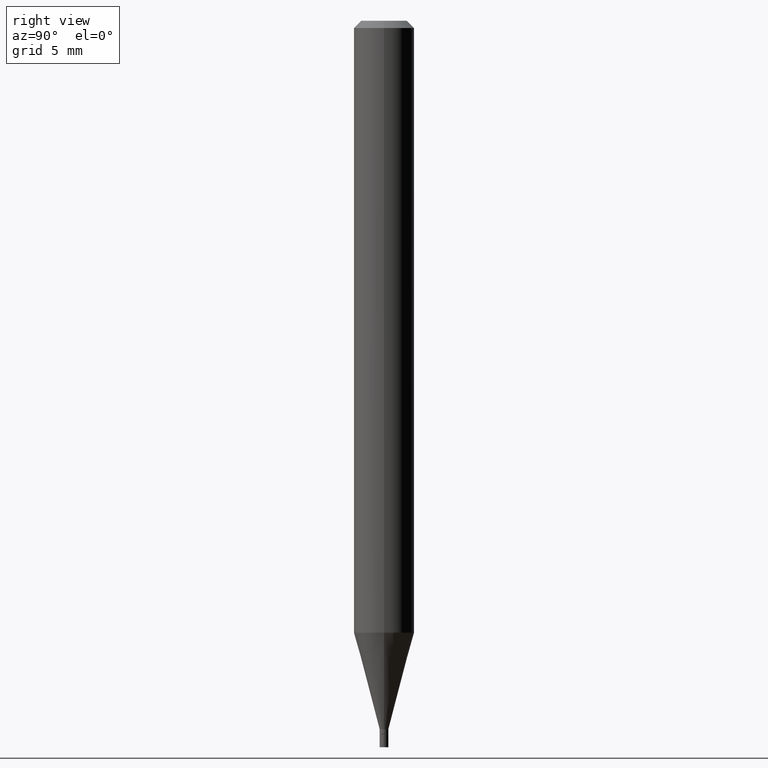
[diagram: clean part render]
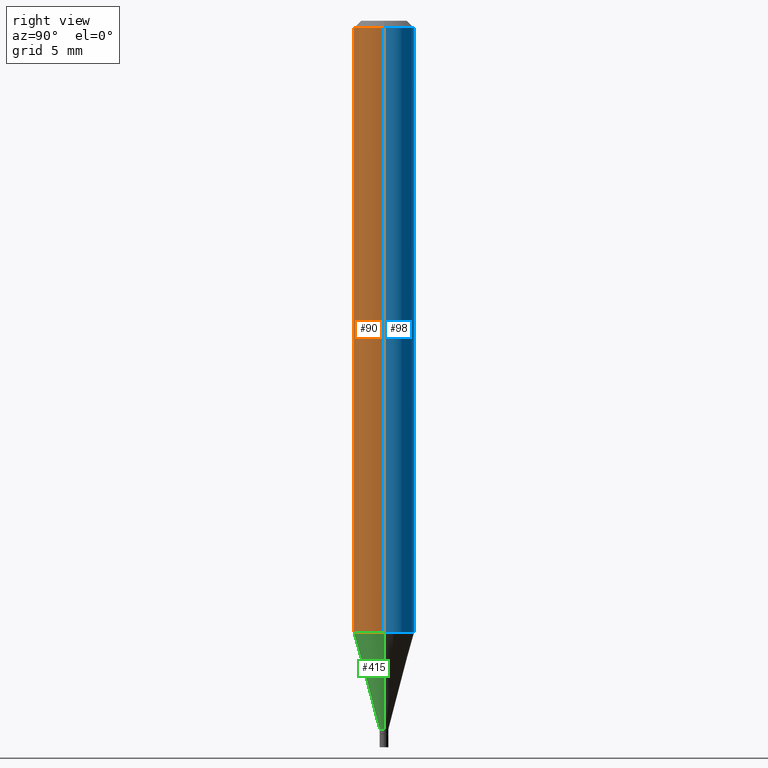
[diagram: same view with three faces highlighted in distinct colors, each labeled with its STEP entity id]
A machine part, right view with three faces highlighted in distinct colors.
Their STEP definitions:

[orange] entity #90 — the highlighted cylindrical surface (edge-blend (fillet) strip) has radius 1.5875 mm, axis along (-0, 0, 1).
#12 = ORIENTED_EDGE ( 'NONE', *, *, #249, .F. ) ;
#36 = VERTEX_POINT ( 'NONE', #406 ) ;
#43 = CARTESIAN_POINT ( 'NONE',  ( 0.06250000000000000000, -4.847346728445009971E-15, -1.263335281795065601 ) ) ;
#61 = CYLINDRICAL_SURFACE ( 'NONE', #297, 0.06250000000000000000 ) ;
#66 = ORIENTED_EDGE ( 'NONE', *, *, #292, .T. ) ;
#90 = ADVANCED_FACE ( 'NONE', ( #137 ), #61, .T. ) ;
#118 = DIRECTION ( 'NONE',  ( 1.000000000000000000, -6.982962677686266711E-15, 4.876176775795935793E-29 ) ) ;
#120 = DIRECTION ( 'NONE',  ( -2.445468806185136877E-29, 3.491481338843145188E-15, 1.000000000000000000 ) ) ;
#126 = CARTESIAN_POINT ( 'NONE',  ( 3.089447023382941681E-29, -4.410911561089617513E-15, -1.263335281795065601 ) ) ;
#127 = DIRECTION ( 'NONE',  ( 1.000000000000000000, -6.982962677686262766E-15, 0.000000000000000000 ) ) ;
#137 = FACE_OUTER_BOUND ( 'NONE', #199, .T. ) ;
#147 = CIRCLE ( 'NONE', #269, 0.06250000000000000000 ) ;
#149 = DIRECTION ( 'NONE',  ( -2.445468806185136597E-29, 3.491481338843145583E-15, 1.000000000000000000 ) ) ;
#152 = ORIENTED_EDGE ( 'NONE', *, *, #187, .T. ) ;
#160 = VECTOR ( 'NONE', #329, 39.37007874015748143 ) ;
#187 = EDGE_CURVE ( 'NONE', #255, #36, #399, .T. ) ;
#188 = CARTESIAN_POINT ( 'NONE',  ( 3.668203209277705088E-31, -5.237222008264718399E-17, -0.01499999999999999944 ) ) ;
#192 = DIRECTION ( 'NONE',  ( -2.445468806185136597E-29, 3.491481338843145583E-15, 1.000000000000000000 ) ) ;
#199 = EDGE_LOOP ( 'NONE', ( #213, #66, #152, #12 ) ) ;
#210 = VERTEX_POINT ( 'NONE', #332 ) ;
#213 = ORIENTED_EDGE ( 'NONE', *, *, #285, .F. ) ;
#220 = AXIS2_PLACEMENT_3D ( 'NONE', #126, #192, #127 ) ;
#249 = EDGE_CURVE ( 'NONE', #265, #36, #147, .T. ) ;
#255 = VERTEX_POINT ( 'NONE', #43 ) ;
#260 = CARTESIAN_POINT ( 'NONE',  ( 0.06250000000000000000, -4.364351673553916694E-16, 3.047610484872459871E-30 ) ) ;
#265 = VERTEX_POINT ( 'NONE', #368 ) ;
#269 = AXIS2_PLACEMENT_3D ( 'NONE', #188, #149, #459 ) ;
#285 = EDGE_CURVE ( 'NONE', #210, #265, #466, .T. ) ;
#289 = DIRECTION ( 'NONE',  ( -2.445468806185136597E-29, 3.491481338843145583E-15, 1.000000000000000000 ) ) ;
#291 = CARTESIAN_POINT ( 'NONE',  ( -0.06250000000000000000, 4.440892098500626162E-16, -3.074334431409316114E-30 ) ) ;
#292 = EDGE_CURVE ( 'NONE', #210, #255, #414, .T. ) ;
#297 = AXIS2_PLACEMENT_3D ( 'NONE', #426, #289, #118 ) ;
#310 = VECTOR ( 'NONE', #120, 39.37007874015748143 ) ;
#329 = DIRECTION ( 'NONE',  ( -2.445468806185136877E-29, 3.491481338843145188E-15, 1.000000000000000000 ) ) ;
#332 = CARTESIAN_POINT ( 'NONE',  ( -0.06250000000000000000, -3.966822351239554897E-15, -1.263335281795065601 ) ) ;
#368 = CARTESIAN_POINT ( 'NONE',  ( -0.06250000000000000000, -1.787552680736069877E-15, -0.01499999999999999944 ) ) ;
#399 = LINE ( 'NONE', #260, #310 ) ;
#406 = CARTESIAN_POINT ( 'NONE',  ( 0.06250000000000000000, -4.888073874380388472E-16, -0.01499999999999999944 ) ) ;
#414 = CIRCLE ( 'NONE', #220, 0.06250000000000000000 ) ;
#426 = CARTESIAN_POINT ( 'NONE',  ( 0.000000000000000000, 0.000000000000000000, 0.000000000000000000 ) ) ;
#459 = DIRECTION ( 'NONE',  ( 1.000000000000000000, -6.982962677686266711E-15, 0.000000000000000000 ) ) ;
#466 = LINE ( 'NONE', #291, #160 ) ;

[blue] entity #98 — the highlighted cylindrical surface (edge-blend (fillet) strip) has radius 1.5875 mm, axis along (-0, 0, 1).
#19 = ORIENTED_EDGE ( 'NONE', *, *, #187, .F. ) ;
#33 = ORIENTED_EDGE ( 'NONE', *, *, #93, .T. ) ;
#36 = VERTEX_POINT ( 'NONE', #406 ) ;
#43 = CARTESIAN_POINT ( 'NONE',  ( 0.06250000000000000000, -4.847346728445009971E-15, -1.263335281795065601 ) ) ;
#49 = DIRECTION ( 'NONE',  ( 1.000000000000000000, -6.982962677686266711E-15, 0.000000000000000000 ) ) ;
#65 = AXIS2_PLACEMENT_3D ( 'NONE', #317, #169, #314 ) ;
#81 = AXIS2_PLACEMENT_3D ( 'NONE', #422, #392, #215 ) ;
#93 = EDGE_CURVE ( 'NONE', #255, #210, #129, .T. ) ;
#98 = ADVANCED_FACE ( 'NONE', ( #385 ), #208, .T. ) ;
#120 = DIRECTION ( 'NONE',  ( -2.445468806185136877E-29, 3.491481338843145188E-15, 1.000000000000000000 ) ) ;
#129 = CIRCLE ( 'NONE', #65, 0.06250000000000000000 ) ;
#160 = VECTOR ( 'NONE', #329, 39.37007874015748143 ) ;
#169 = DIRECTION ( 'NONE',  ( -2.445468806185136597E-29, 3.491481338843145583E-15, 1.000000000000000000 ) ) ;
#187 = EDGE_CURVE ( 'NONE', #255, #36, #399, .T. ) ;
#208 = CYLINDRICAL_SURFACE ( 'NONE', #81, 0.06250000000000000000 ) ;
#210 = VERTEX_POINT ( 'NONE', #332 ) ;
#215 = DIRECTION ( 'NONE',  ( 1.000000000000000000, -6.982962677686266711E-15, 4.876176775795935793E-29 ) ) ;
#246 = CIRCLE ( 'NONE', #303, 0.06250000000000000000 ) ;
#255 = VERTEX_POINT ( 'NONE', #43 ) ;
#260 = CARTESIAN_POINT ( 'NONE',  ( 0.06250000000000000000, -4.364351673553916694E-16, 3.047610484872459871E-30 ) ) ;
#265 = VERTEX_POINT ( 'NONE', #368 ) ;
#268 = EDGE_CURVE ( 'NONE', #36, #265, #246, .T. ) ;
#285 = EDGE_CURVE ( 'NONE', #210, #265, #466, .T. ) ;
#290 = DIRECTION ( 'NONE',  ( -2.445468806185136597E-29, 3.491481338843145583E-15, 1.000000000000000000 ) ) ;
#291 = CARTESIAN_POINT ( 'NONE',  ( -0.06250000000000000000, 4.440892098500626162E-16, -3.074334431409316114E-30 ) ) ;
#303 = AXIS2_PLACEMENT_3D ( 'NONE', #366, #290, #49 ) ;
#310 = VECTOR ( 'NONE', #120, 39.37007874015748143 ) ;
#314 = DIRECTION ( 'NONE',  ( 1.000000000000000000, -6.982962677686262766E-15, 0.000000000000000000 ) ) ;
#317 = CARTESIAN_POINT ( 'NONE',  ( 3.089447023382941681E-29, -4.410911561089617513E-15, -1.263335281795065601 ) ) ;
#329 = DIRECTION ( 'NONE',  ( -2.445468806185136877E-29, 3.491481338843145188E-15, 1.000000000000000000 ) ) ;
#332 = CARTESIAN_POINT ( 'NONE',  ( -0.06250000000000000000, -3.966822351239554897E-15, -1.263335281795065601 ) ) ;
#353 = ORIENTED_EDGE ( 'NONE', *, *, #285, .T. ) ;
#365 = EDGE_LOOP ( 'NONE', ( #33, #353, #421, #19 ) ) ;
#366 = CARTESIAN_POINT ( 'NONE',  ( 3.668203209277705088E-31, -5.237222008264718399E-17, -0.01499999999999999944 ) ) ;
#368 = CARTESIAN_POINT ( 'NONE',  ( -0.06250000000000000000, -1.787552680736069877E-15, -0.01499999999999999944 ) ) ;
#385 = FACE_OUTER_BOUND ( 'NONE', #365, .T. ) ;
#392 = DIRECTION ( 'NONE',  ( -2.445468806185136597E-29, 3.491481338843145583E-15, 1.000000000000000000 ) ) ;
#399 = LINE ( 'NONE', #260, #310 ) ;
#406 = CARTESIAN_POINT ( 'NONE',  ( 0.06250000000000000000, -4.888073874380388472E-16, -0.01499999999999999944 ) ) ;
#421 = ORIENTED_EDGE ( 'NONE', *, *, #268, .F. ) ;
#422 = CARTESIAN_POINT ( 'NONE',  ( 0.000000000000000000, 0.000000000000000000, 0.000000000000000000 ) ) ;
#466 = LINE ( 'NONE', #291, #160 ) ;

[green] entity #415 — the highlighted conical surface has half-angle 15 deg.
#2 = DIRECTION ( 'NONE',  ( -2.445468806185136597E-29, 3.491481338843145583E-15, 1.000000000000000000 ) ) ;
#43 = CARTESIAN_POINT ( 'NONE',  ( 0.06250000000000000000, -4.847346728445009971E-15, -1.263335281795065601 ) ) ;
#56 = CIRCLE ( 'NONE', #97, 0.008999999999999919523 ) ;
#62 = DIRECTION ( 'NONE',  ( 0.2588190451025214611, 1.565188264969621573E-15, 0.9659258262890682012 ) ) ;
#92 = DIRECTION ( 'NONE',  ( 1.000000000000000000, -6.982962677686288010E-15, 0.000000000000000000 ) ) ;
#94 = LINE ( 'NONE', #234, #99 ) ;
#97 = AXIS2_PLACEMENT_3D ( 'NONE', #390, #2, #111 ) ;
#99 = VECTOR ( 'NONE', #62, 39.37007874015747433 ) ;
#107 = VECTOR ( 'NONE', #326, 39.37007874015747433 ) ;
#111 = DIRECTION ( 'NONE',  ( 1.000000000000000000, -6.982962677686288010E-15, 0.000000000000000000 ) ) ;
#116 = LINE ( 'NONE', #181, #107 ) ;
#121 = ORIENTED_EDGE ( 'NONE', *, *, #292, .F. ) ;
#126 = CARTESIAN_POINT ( 'NONE',  ( 3.089447023382941681E-29, -4.410911561089617513E-15, -1.263335281795065601 ) ) ;
#127 = DIRECTION ( 'NONE',  ( 1.000000000000000000, -6.982962677686262766E-15, 0.000000000000000000 ) ) ;
#128 = EDGE_CURVE ( 'NONE', #198, #202, #56, .T. ) ;
#154 = ORIENTED_EDGE ( 'NONE', *, *, #284, .F. ) ;
#161 = FACE_OUTER_BOUND ( 'NONE', #431, .T. ) ;
#166 = AXIS2_PLACEMENT_3D ( 'NONE', #444, #301, #92 ) ;
#181 = CARTESIAN_POINT ( 'NONE',  ( -0.008999999999999919523, -5.044088352509113895E-15, -1.463000000000000300 ) ) ;
#192 = DIRECTION ( 'NONE',  ( -2.445468806185136597E-29, 3.491481338843145583E-15, 1.000000000000000000 ) ) ;
#198 = VERTEX_POINT ( 'NONE', #398 ) ;
#202 = VERTEX_POINT ( 'NONE', #360 ) ;
#210 = VERTEX_POINT ( 'NONE', #332 ) ;
#220 = AXIS2_PLACEMENT_3D ( 'NONE', #126, #192, #127 ) ;
#234 = CARTESIAN_POINT ( 'NONE',  ( 0.008999999999999919523, -5.170883862826698675E-15, -1.463000000000000300 ) ) ;
#255 = VERTEX_POINT ( 'NONE', #43 ) ;
#284 = EDGE_CURVE ( 'NONE', #198, #210, #116, .T. ) ;
#292 = EDGE_CURVE ( 'NONE', #210, #255, #414, .T. ) ;
#301 = DIRECTION ( 'NONE',  ( -2.445468806185136597E-29, 3.491481338843145583E-15, 1.000000000000000000 ) ) ;
#326 = DIRECTION ( 'NONE',  ( -0.2588190451025214611, 5.211531920934551042E-15, 0.9659258262890682012 ) ) ;
#332 = CARTESIAN_POINT ( 'NONE',  ( -0.06250000000000000000, -3.966822351239554897E-15, -1.263335281795065601 ) ) ;
#352 = CONICAL_SURFACE ( 'NONE', #166, 0.008999999999999919523, 0.2617993877991501295 ) ;
#360 = CARTESIAN_POINT ( 'NONE',  ( 0.008999999999999919523, -5.170883862826698675E-15, -1.463000000000000300 ) ) ;
#361 = ORIENTED_EDGE ( 'NONE', *, *, #128, .T. ) ;
#367 = ORIENTED_EDGE ( 'NONE', *, *, #452, .T. ) ;
#390 = CARTESIAN_POINT ( 'NONE',  ( 3.577720863448855523E-29, -5.108037198727522968E-15, -1.463000000000000300 ) ) ;
#398 = CARTESIAN_POINT ( 'NONE',  ( -0.008999999999999919523, -4.505455351874334790E-15, -1.463000000000000300 ) ) ;
#414 = CIRCLE ( 'NONE', #220, 0.06250000000000000000 ) ;
#415 = ADVANCED_FACE ( 'NONE', ( #161 ), #352, .T. ) ;
#431 = EDGE_LOOP ( 'NONE', ( #154, #361, #367, #121 ) ) ;
#444 = CARTESIAN_POINT ( 'NONE',  ( 3.577720863448855523E-29, -5.108037198727522968E-15, -1.463000000000000300 ) ) ;
#452 = EDGE_CURVE ( 'NONE', #202, #255, #94, .T. ) ;